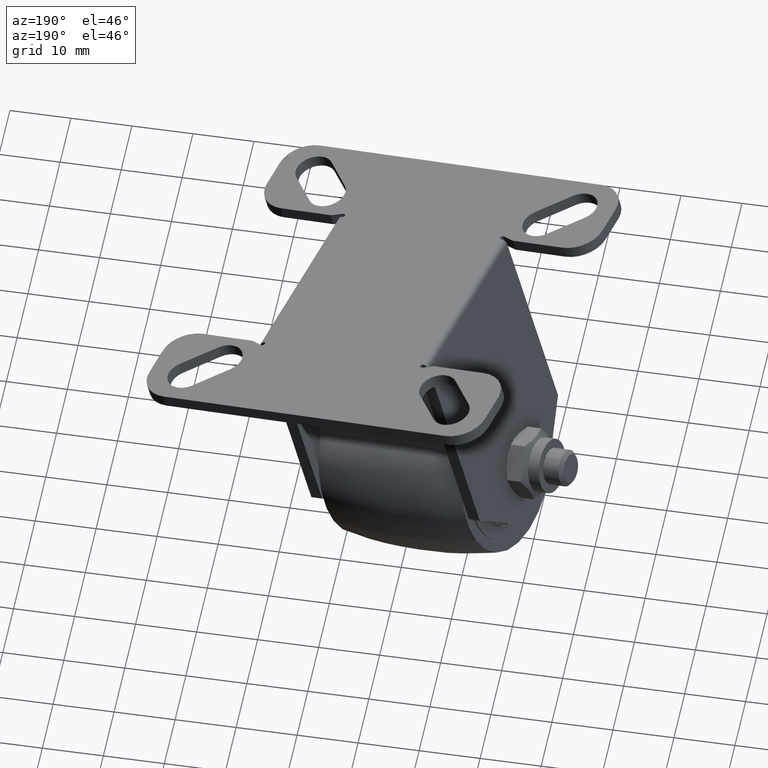
[diagram: clean part render]
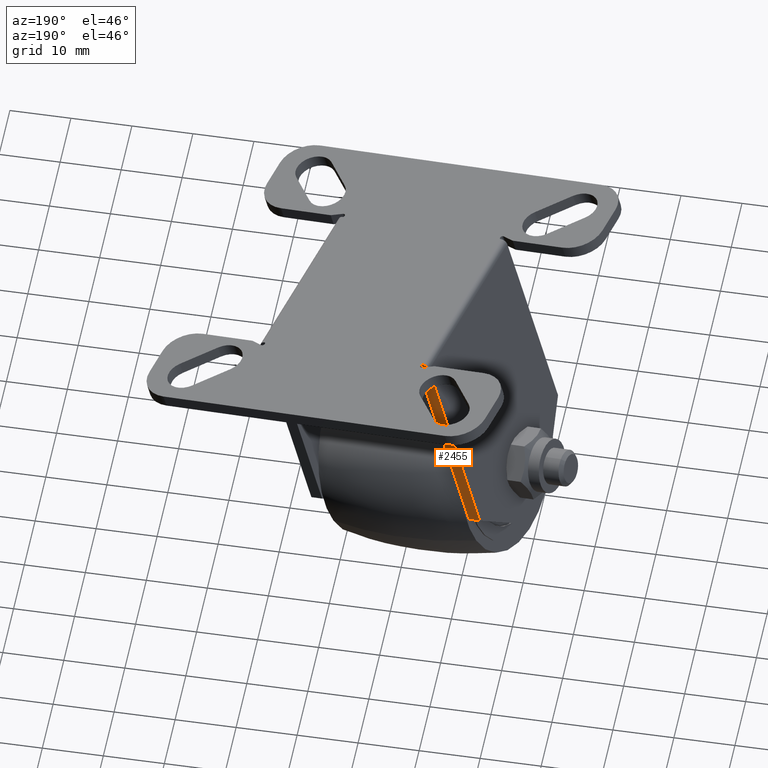
[diagram: same view with one face highlighted and labeled with its STEP entity id]
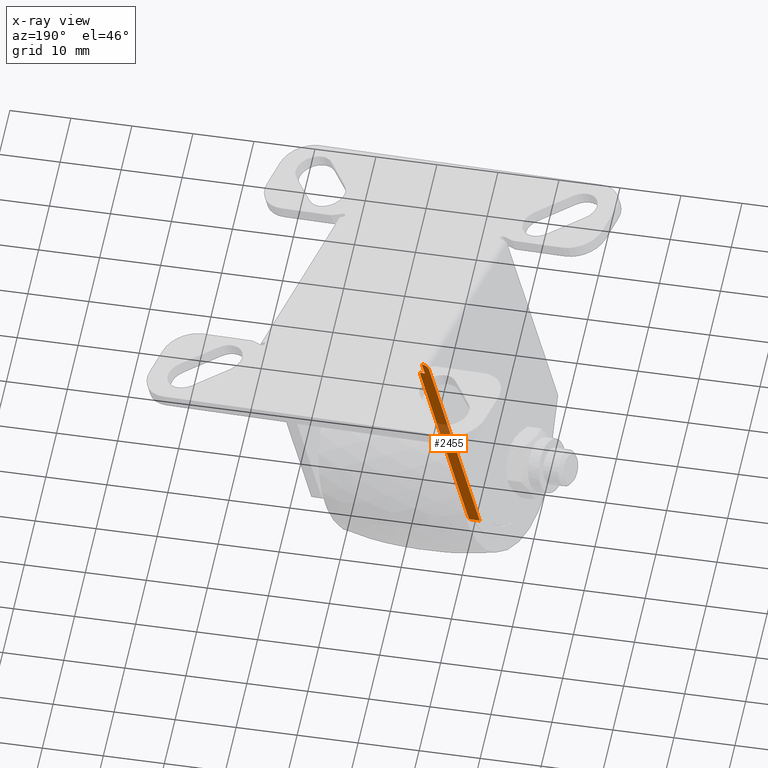
[diagram: x-ray of the same camera — body ghosted, the highlighted face saturated]
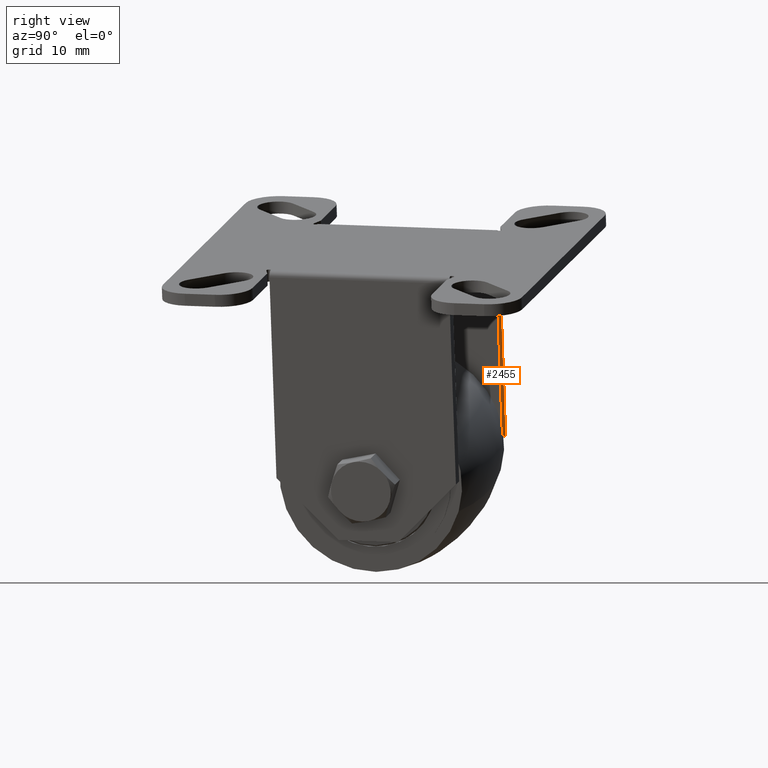
[diagram: same view with one face highlighted and labeled with its STEP entity id]
A machine part, auxiliary view. The second image highlights one B-rep face of the part: STEP entity #2455.
The next image is the same camera in x-ray: the body ghosted, the highlighted face saturated — about 14% of this face is hidden behind the body in this view.
A second angle (right view) of the same face is appended — the face is thin or edge-on in the first view.
In plain terms, the highlighted planar face has unit normal (-0.2575, -0.9657, 0.0339).
Its self-contained STEP definition (entity closure, byte-faithful):
#72=LINE('',#4457,#220);
#100=LINE('',#4546,#248);
#142=LINE('',#4664,#290);
#165=LINE('',#4721,#313);
#166=LINE('',#4723,#314);
#167=LINE('',#4724,#315);
#220=VECTOR('',#3130,0.943055751199999);
#248=VECTOR('',#3196,0.0569442488000016);
#290=VECTOR('',#3318,2.);
#313=VECTOR('',#3391,32.5);
#314=VECTOR('',#3392,2.);
#315=VECTOR('',#3393,33.5);
#517=PLANE('',#2732);
#722=FACE_OUTER_BOUND('',#923,.T.);
#923=EDGE_LOOP('',(#2215,#2216,#2217,#2218,#2219,#2220,#2221));
#1050=CIRCLE('',#2684,1.);
#1191=VERTEX_POINT('',#4454);
#1192=VERTEX_POINT('',#4456);
#1233=VERTEX_POINT('',#4543);
#1234=VERTEX_POINT('',#4545);
#1268=VERTEX_POINT('',#4615);
#1279=VERTEX_POINT('',#4720);
#1280=VERTEX_POINT('',#4722);
#1468=EDGE_CURVE('',#1192,#1191,#72,.F.);
#1513=EDGE_CURVE('',#1233,#1234,#100,.F.);
#1548=EDGE_CURVE('',#1234,#1268,#1050,.T.);
#1573=EDGE_CURVE('',#1192,#1233,#142,.T.);
#1600=EDGE_CURVE('',#1191,#1279,#165,.T.);
#1601=EDGE_CURVE('',#1280,#1279,#166,.F.);
#1602=EDGE_CURVE('',#1280,#1268,#167,.T.);
#2215=ORIENTED_EDGE('',*,*,#1548,.F.);
#2216=ORIENTED_EDGE('',*,*,#1513,.F.);
#2217=ORIENTED_EDGE('',*,*,#1573,.F.);
#2218=ORIENTED_EDGE('',*,*,#1468,.T.);
#2219=ORIENTED_EDGE('',*,*,#1600,.T.);
#2220=ORIENTED_EDGE('',*,*,#1601,.F.);
#2221=ORIENTED_EDGE('',*,*,#1602,.T.);
#2455=ADVANCED_FACE('',(#722),#517,.F.);
#2684=AXIS2_PLACEMENT_3D('',#4616,#3248,#3249);
#2732=AXIS2_PLACEMENT_3D('',#4719,#3389,#3390);
#3130=DIRECTION('',(-1.,0.,0.));
#3196=DIRECTION('',(1.,0.,0.));
#3248=DIRECTION('center_axis',(0.,-1.,0.));
#3249=DIRECTION('ref_axis',(0.,0.,1.));
#3318=DIRECTION('',(0.,0.,1.));
#3389=DIRECTION('center_axis',(0.,-1.,0.));
#3390=DIRECTION('ref_axis',(1.,0.,0.));
#3391=DIRECTION('',(0.,0.,-1.));
#3392=DIRECTION('',(-1.,0.,0.));
#3393=DIRECTION('',(0.,0.,1.));
#4454=CARTESIAN_POINT('',(-13.5599088669,15.,0.));
#4456=CARTESIAN_POINT('',(-14.5029646181,15.,0.));
#4457=CARTESIAN_POINT('',(-14.0314367425,15.,0.));
#4543=CARTESIAN_POINT('',(-14.5029646181,15.,2.));
#4545=CARTESIAN_POINT('',(-14.5599088669,15.,2.));
#4546=CARTESIAN_POINT('',(-14.5314367425,15.,2.));
#4615=CARTESIAN_POINT('',(-15.5599088669,15.,1.));
#4616=CARTESIAN_POINT('Origin',(-14.5599088669,15.,1.));
#4664=CARTESIAN_POINT('',(-14.5029646181,15.,1.));
#4719=CARTESIAN_POINT('Origin',(-31.,15.,0.));
#4720=CARTESIAN_POINT('',(-13.5599088669,15.,-32.5));
#4721=CARTESIAN_POINT('',(-13.5599088669,15.,-16.25));
#4722=CARTESIAN_POINT('',(-15.5599088669,15.,-32.5));
#4723=CARTESIAN_POINT('',(-14.5599088669,15.,-32.5));
#4724=CARTESIAN_POINT('',(-15.5599088669,15.,-15.75));